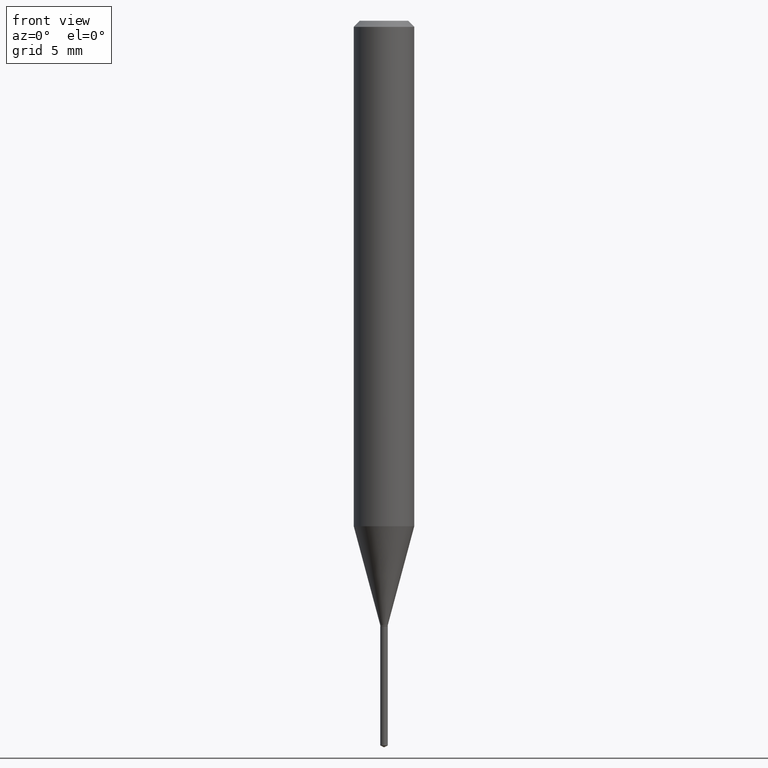
[diagram: clean part render]
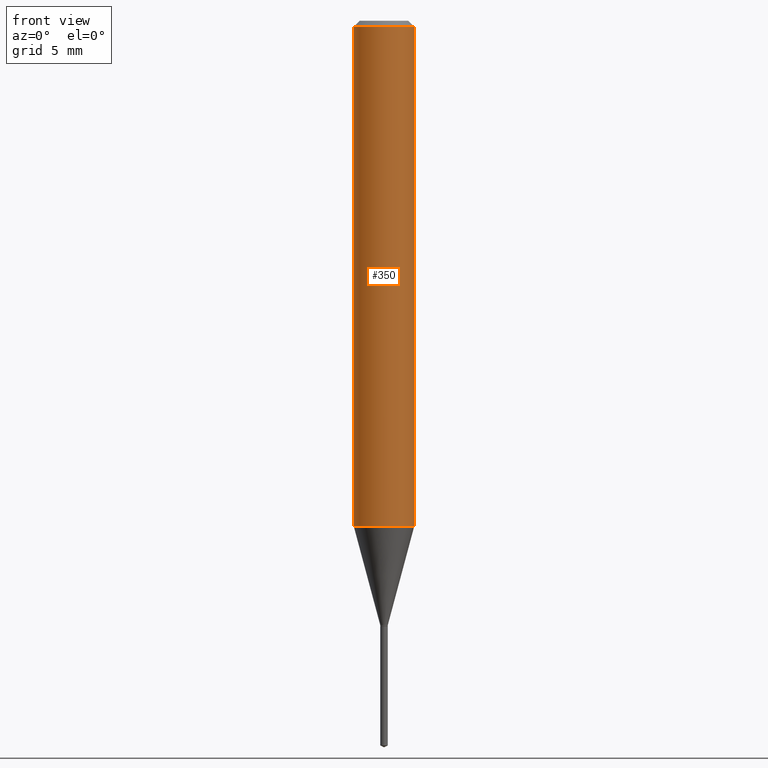
[diagram: same view with one face highlighted and labeled with its STEP entity id]
A machine part, front view. The second image highlights one B-rep face of the part: STEP entity #350.
In plain terms, the highlighted cylindrical surface (edge-blend (fillet) strip) has radius 1.5875 mm, axis along (-0, 0, 1).
Its self-contained STEP definition (entity closure, byte-faithful):
#7 = DIRECTION ( 'NONE',  ( 1.000000000000000000, -6.982962677686266711E-15, 0.000000000000000000 ) ) ;
#12 = LINE ( 'NONE', #89, #381 ) ;
#17 = LINE ( 'NONE', #197, #401 ) ;
#24 = DIRECTION ( 'NONE',  ( -2.445468806185136597E-29, 3.491481338843145583E-15, 1.000000000000000000 ) ) ;
#29 = DIRECTION ( 'NONE',  ( 1.000000000000000000, -6.982962677686264344E-15, 0.000000000000000000 ) ) ;
#31 = CARTESIAN_POINT ( 'NONE',  ( 0.06250000000000012490, -4.080296704445417629E-15, -1.043643423366360956 ) ) ;
#41 = CARTESIAN_POINT ( 'NONE',  ( 3.056836007731441415E-31, -4.364351673553961684E-17, -0.01250000000000008396 ) ) ;
#45 = CARTESIAN_POINT ( 'NONE',  ( 0.06250000000000000000, -4.800786840909313294E-16, -0.01250000000000008396 ) ) ;
#81 = EDGE_CURVE ( 'NONE', #438, #252, #204, .T. ) ;
#85 = AXIS2_PLACEMENT_3D ( 'NONE', #41, #313, #7 ) ;
#89 = CARTESIAN_POINT ( 'NONE',  ( -0.06250000000000006939, 4.440892098500631092E-16, -3.074334431409319267E-30 ) ) ;
#102 = ORIENTED_EDGE ( 'NONE', *, *, #216, .T. ) ;
#127 = ORIENTED_EDGE ( 'NONE', *, *, #81, .F. ) ;
#133 = CARTESIAN_POINT ( 'NONE',  ( -0.06250000000000000000, -1.399663317062718764E-15, -0.01250000000000008396 ) ) ;
#142 = VERTEX_POINT ( 'NONE', #472 ) ;
#166 = DIRECTION ( 'NONE',  ( -2.445468806185136877E-29, 3.491481338843145188E-15, 1.000000000000000000 ) ) ;
#197 = CARTESIAN_POINT ( 'NONE',  ( 0.06250000000000006939, -4.364351673553921624E-16, 3.047610484872463374E-30 ) ) ;
#204 = CIRCLE ( 'NONE', #85, 0.06250000000000000000 ) ;
#216 = EDGE_CURVE ( 'NONE', #416, #252, #17, .T. ) ;
#219 = CIRCLE ( 'NONE', #307, 0.06250000000000012490 ) ;
#252 = VERTEX_POINT ( 'NONE', #45 ) ;
#259 = DIRECTION ( 'NONE',  ( 1.000000000000000000, -6.982962677686266711E-15, 4.876176775795935793E-29 ) ) ;
#281 = EDGE_CURVE ( 'NONE', #142, #438, #12, .T. ) ;
#307 = AXIS2_PLACEMENT_3D ( 'NONE', #373, #24, #29 ) ;
#313 = DIRECTION ( 'NONE',  ( -2.445468806185136597E-29, 3.491481338843145583E-15, 1.000000000000000000 ) ) ;
#315 = AXIS2_PLACEMENT_3D ( 'NONE', #338, #476, #259 ) ;
#338 = CARTESIAN_POINT ( 'NONE',  ( 0.000000000000000000, 0.000000000000000000, 0.000000000000000000 ) ) ;
#350 = ADVANCED_FACE ( 'NONE', ( #371 ), #482, .T. ) ;
#358 = EDGE_CURVE ( 'NONE', #142, #416, #219, .T. ) ;
#371 = FACE_OUTER_BOUND ( 'NONE', #399, .T. ) ;
#373 = CARTESIAN_POINT ( 'NONE',  ( 2.552197436622703749E-29, -3.643861537090025960E-15, -1.043643423366360956 ) ) ;
#381 = VECTOR ( 'NONE', #397, 39.37007874015748143 ) ;
#397 = DIRECTION ( 'NONE',  ( -2.445468806185136877E-29, 3.491481338843145188E-15, 1.000000000000000000 ) ) ;
#399 = EDGE_LOOP ( 'NONE', ( #410, #450, #102, #127 ) ) ;
#401 = VECTOR ( 'NONE', #166, 39.37007874015748143 ) ;
#410 = ORIENTED_EDGE ( 'NONE', *, *, #281, .F. ) ;
#416 = VERTEX_POINT ( 'NONE', #31 ) ;
#438 = VERTEX_POINT ( 'NONE', #133 ) ;
#450 = ORIENTED_EDGE ( 'NONE', *, *, #358, .T. ) ;
#472 = CARTESIAN_POINT ( 'NONE',  ( -0.06250000000000012490, -3.199772327239961372E-15, -1.043643423366360956 ) ) ;
#476 = DIRECTION ( 'NONE',  ( -2.445468806185136597E-29, 3.491481338843145583E-15, 1.000000000000000000 ) ) ;
#482 = CYLINDRICAL_SURFACE ( 'NONE', #315, 0.06250000000000006939 ) ;